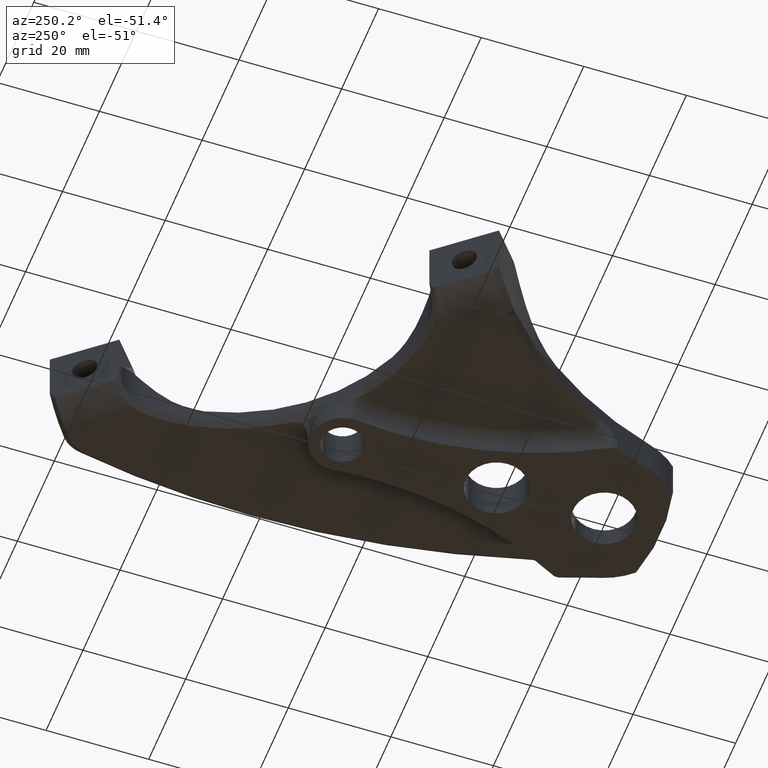
[diagram: clean part render]
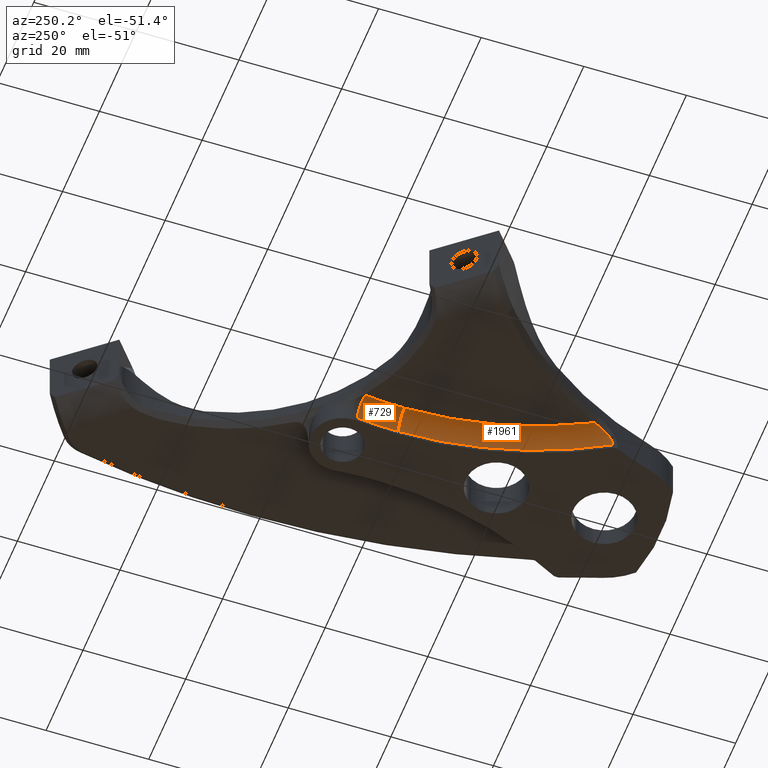
[diagram: same view with one multi-face feature highlighted, each face labeled with its STEP entity id]
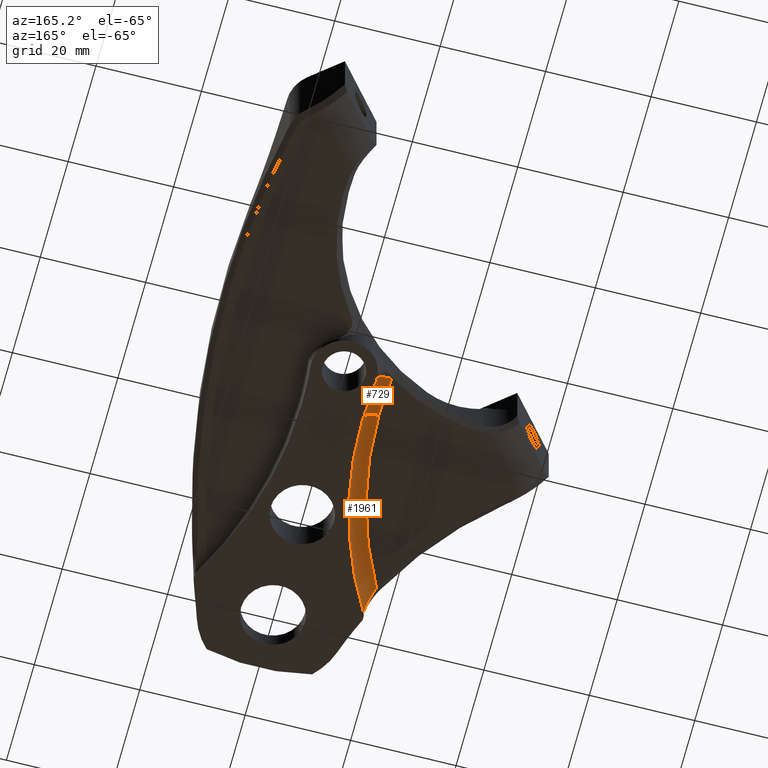
[diagram: same view with one multi-face feature highlighted, each face labeled with its STEP entity id]
A machine part, auxiliary view. The highlighted faces form ONE feature: a constant-radius fillet chain: 2 tangent blend faces with common blend radius 3.175 mm. The faces share edges in the B-rep.
A second angle (auxiliary view) of the same feature is appended — it is thin or edge-on in the first view.
Their STEP definitions:
[1] entity #1961 (Torus):
#19 = CARTESIAN_POINT ( 'NONE',  ( -17.32713006791666300, 7.893620290536436100, -0.01314927775519285900 ) ) ;
#86 = CARTESIAN_POINT ( 'NONE',  ( -16.95694036213411200, 6.824794619698474600, -0.2065549157166281800 ) ) ;
#103 = EDGE_LOOP ( 'NONE', ( #1093, #750, #1333, #431 ) ) ;
#106 = CARTESIAN_POINT ( 'NONE',  ( -16.11974643430036700, 4.172303941784086600, -2.943662587470298900 ) ) ;
#115 = CARTESIAN_POINT ( 'NONE',  ( -16.36010604480489100, 4.972070466250358800, -1.294650267627531800 ) ) ;
#140 = CARTESIAN_POINT ( 'NONE',  ( -16.99367375735066300, 6.933625636523463400, -0.1745115039723481000 ) ) ;
#150 = CARTESIAN_POINT ( 'NONE',  ( -16.34045124637314900, 4.907969160249481700, -1.363017720651017000 ) ) ;
#169 = CARTESIAN_POINT ( 'NONE',  ( -16.70124060004785700, 6.052374319384428600, -0.5102661665487634400 ) ) ;
#193 = CARTESIAN_POINT ( 'NONE',  ( -16.85820991962287600, 6.530202395463272000, -0.3036691712987485400 ) ) ;
#195 = DIRECTION ( 'NONE',  ( 0.0000000000000000000, 0.0000000000000000000, -1.000000000000000000 ) ) ;
#217 = CARTESIAN_POINT ( 'NONE',  ( -17.19000608713516000, 7.504121891761776900, -0.05624553702411239100 ) ) ;
#251 = CARTESIAN_POINT ( 'NONE',  ( -16.76661307435811200, 6.252934531237252200, -0.4144974211264321800 ) ) ;
#278 = CIRCLE ( 'NONE', #3270, 71.82499999999998900 ) ;
#304 = CARTESIAN_POINT ( 'NONE',  ( -80.76965408793313400, 42.17812499999997300, -3.175000000000011400 ) ) ;
#314 = EDGE_CURVE ( 'NONE', #1991, #2809, #3182, .T. ) ;
#322 = CARTESIAN_POINT ( 'NONE',  ( -16.31876129252150400, 4.837020267666368100, -1.442642962259876400 ) ) ;
#343 = AXIS2_PLACEMENT_3D ( 'NONE', #304, #948, #3149 ) ;
#395 = CARTESIAN_POINT ( 'NONE',  ( -8.944654087933143300, 42.17812499999997300, -5.637851296924623100E-015 ) ) ;
#409 = CARTESIAN_POINT ( 'NONE',  ( -16.11731790131428000, 4.163977296646005600, -3.175000000000011400 ) ) ;
#431 = ORIENTED_EDGE ( 'NONE', *, *, #3308, .F. ) ;
#437 = CARTESIAN_POINT ( 'NONE',  ( -16.66986745275626100, 5.955621695953017700, -0.5596465993611973200 ) ) ;
#449 = CARTESIAN_POINT ( 'NONE',  ( -16.20040453833640700, 4.444560588513141400, -2.027729583173014700 ) ) ;
#455 = CARTESIAN_POINT ( 'NONE',  ( -16.30144675083077000, 4.780100523326855600, -1.512144183324602300 ) ) ;
#460 = CIRCLE ( 'NONE', #343, 74.99999999999998600 ) ;
#497 = CARTESIAN_POINT ( 'NONE',  ( -17.18141459303705800, 7.479488085271863300, -0.05995588793603064100 ) ) ;
#577 = CARTESIAN_POINT ( 'NONE',  ( -17.40073488402177700, 8.100354830017652200, -1.238828037006797500E-014 ) ) ;
#582 = CARTESIAN_POINT ( 'NONE',  ( -80.76965408793313400, 42.17812499999997300, -3.175000000000011400 ) ) ;
#603 = DIRECTION ( 'NONE',  ( -0.0000000000000000000, -0.0000000000000000000, -1.000000000000000000 ) ) ;
#621 = CARTESIAN_POINT ( 'NONE',  ( -17.32217262157107400, 7.879664358654827600, -0.01417153711818459900 ) ) ;
#750 = ORIENTED_EDGE ( 'NONE', *, *, #2225, .F. ) ;
#881 = CARTESIAN_POINT ( 'NONE',  ( -17.30766687786305300, 7.838787150325359200, -0.01734626066290517000 ) ) ;
#948 = DIRECTION ( 'NONE',  ( 0.0000000000000000000, 0.0000000000000000000, 1.000000000000000000 ) ) ;
#981 = CARTESIAN_POINT ( 'NONE',  ( -16.13769842029330400, 4.233203992264798800, -2.598508583086736000 ) ) ;
#1002 = CARTESIAN_POINT ( 'NONE',  ( -16.35654840628307100, 4.960480194832665100, -1.306781909296766700 ) ) ;
#1030 = CARTESIAN_POINT ( 'NONE',  ( -16.11731609970823700, 4.163980360716779600, -3.059447185505082900 ) ) ;
#1083 = FACE_OUTER_BOUND ( 'NONE', #103, .T. ) ;
#1093 = ORIENTED_EDGE ( 'NONE', *, *, #3068, .F. ) ;
#1118 = AXIS2_PLACEMENT_3D ( 'NONE', #3455, #1811, #195 ) ;
#1167 = CARTESIAN_POINT ( 'NONE',  ( -16.94075507065248600, 6.776784162971083000, -0.2209860409216316500 ) ) ;
#1226 = CARTESIAN_POINT ( 'NONE',  ( -16.71498546529215900, 6.094629993559629500, -0.4895361822945641400 ) ) ;
#1257 = CARTESIAN_POINT ( 'NONE',  ( -16.52594636448922900, 5.504780980780533500, -0.8379983926594772900 ) ) ;
#1287 = VERTEX_POINT ( 'NONE', #395 ) ;
#1308 = AXIS2_PLACEMENT_3D ( 'NONE', #582, #2395, #1403 ) ;
#1333 = ORIENTED_EDGE ( 'NONE', *, *, #314, .T. ) ;
#1403 = DIRECTION ( 'NONE',  ( 1.000000000000000000, 0.0000000000000000000, 0.0000000000000000000 ) ) ;
#1411 = CARTESIAN_POINT ( 'NONE',  ( -16.47856553136505700, 5.354232912731440300, -0.9490256168687392100 ) ) ;
#1478 = CARTESIAN_POINT ( 'NONE',  ( -16.35006685743330800, 4.939346544713537000, -1.329229667997683400 ) ) ;
#1483 = CARTESIAN_POINT ( 'NONE',  ( -17.27155842883091500, 7.736674390761790800, -0.02678872524002827100 ) ) ;
#1521 = CARTESIAN_POINT ( 'NONE',  ( -16.64417114301171500, 5.875864976518362100, -0.6035952069853873800 ) ) ;
#1568 = CARTESIAN_POINT ( 'NONE',  ( -17.28783905288787500, 7.782802687426269000, -0.02216237635611892400 ) ) ;
#1656 = CARTESIAN_POINT ( 'NONE',  ( -17.19575721202404500, 7.520602825260930000, -0.05380475645699118300 ) ) ;
#1703 = CARTESIAN_POINT ( 'NONE',  ( -5.769654087933144400, 42.17812499999997300, -3.175000000000011400 ) ) ;
#1705 = CARTESIAN_POINT ( 'NONE',  ( -16.92266441108794300, 6.723013264970372700, -0.2376960485590954000 ) ) ;
#1733 = CARTESIAN_POINT ( 'NONE',  ( -16.56324196180416700, 5.622783573300695900, -0.7557246262562226100 ) ) ;
#1769 = CARTESIAN_POINT ( 'NONE',  ( -16.50586401373261600, 5.441091557556589500, -0.8838187934504417900 ) ) ;
#1808 = CARTESIAN_POINT ( 'NONE',  ( -16.80186215788822000, 6.360268024336146000, -0.3685418915728817500 ) ) ;
#1811 = DIRECTION ( 'NONE',  ( 0.0000000000000000000, -1.000000000000000000, 0.0000000000000000000 ) ) ;
#1831 = CARTESIAN_POINT ( 'NONE',  ( -17.12300310142765600, 7.311358323715415600, -0.08821555555352392200 ) ) ;
#1860 = CARTESIAN_POINT ( 'NONE',  ( -17.09160583142382400, 7.220236789679725900, -0.1067010159542611800 ) ) ;
#1886 = CARTESIAN_POINT ( 'NONE',  ( -17.32510460649977100, 7.887919518215155400, -0.01356160575935360500 ) ) ;
#1898 = CARTESIAN_POINT ( 'NONE',  ( -16.72421521659872200, 6.122975667361989100, -0.4758154928119704400 ) ) ;
#1961 = ADVANCED_FACE ( 'NONE', ( #1083 ), #2208, .F. ) ;
#1983 = CARTESIAN_POINT ( 'NONE',  ( -16.88725012249869900, 6.617401564362566500, -0.2722500839793524100 ) ) ;
#1986 = CARTESIAN_POINT ( 'NONE',  ( -16.16787915290376200, 4.335292017444325000, -2.267645142716340000 ) ) ;
#1991 = VERTEX_POINT ( 'NONE', #409 ) ;
#2022 = CARTESIAN_POINT ( 'NONE',  ( -16.51787221311146000, 5.479189104576533100, -0.8562716897378093200 ) ) ;
#2032 = CARTESIAN_POINT ( 'NONE',  ( -16.14441609675013800, 4.255940722335212800, -2.511657976512096500 ) ) ;
#2058 = CARTESIAN_POINT ( 'NONE',  ( -16.72941118087493400, 6.138915155897009900, -0.4682137749387356700 ) ) ;
#2071 = CARTESIAN_POINT ( 'NONE',  ( -16.15617814801807800, 4.295733456272746900, -2.375757519208713900 ) ) ;
#2081 = CARTESIAN_POINT ( 'NONE',  ( -17.19922038497645600, 7.530521025017903500, -0.05236492321796019900 ) ) ;
#2160 = CARTESIAN_POINT ( 'NONE',  ( -80.76965408793313400, 42.17812499999997300, 0.0000000000000000000 ) ) ;
#2178 = CARTESIAN_POINT ( 'NONE',  ( -16.26850223084082700, 4.671472578391036000, -1.652560676802903500 ) ) ;
#2208 = TOROIDAL_SURFACE ( 'NONE', #1308, 71.82499999999998900, 3.174999999999999800 ) ;
#2213 = CARTESIAN_POINT ( 'NONE',  ( -16.41368854377258300, 5.146078811307778400, -1.122904443918639100 ) ) ;
#2225 = EDGE_CURVE ( 'NONE', #1991, #2776, #460, .T. ) ;
#2227 = CARTESIAN_POINT ( 'NONE',  ( -17.35753778443635300, 7.979187153541284200, -0.007037015499046460200 ) ) ;
#2255 = CARTESIAN_POINT ( 'NONE',  ( -16.59435212209795600, 5.720608575209849900, -0.6933716787290567000 ) ) ;
#2293 = CARTESIAN_POINT ( 'NONE',  ( -16.95383206688309100, 6.815581452515102600, -0.2092888030385038900 ) ) ;
#2323 = CARTESIAN_POINT ( 'NONE',  ( -17.16161448742979400, 7.422623383936108400, -0.06894941477622509900 ) ) ;
#2395 = DIRECTION ( 'NONE',  ( 0.0000000000000000000, 0.0000000000000000000, 1.000000000000000000 ) ) ;
#2409 = CARTESIAN_POINT ( 'NONE',  ( -16.18897310115297800, 4.406208666747137800, -2.107383227554251000 ) ) ;
#2421 = DIRECTION ( 'NONE',  ( 1.000000000000000000, 0.0000000000000000000, 0.0000000000000000000 ) ) ;
#2439 = CARTESIAN_POINT ( 'NONE',  ( -16.12710121033910600, 4.197290284210466500, -2.770681692764132500 ) ) ;
#2523 = CARTESIAN_POINT ( 'NONE',  ( -16.53048375993357400, 5.519147859121201100, -0.8278810615731940800 ) ) ;
#2574 = CARTESIAN_POINT ( 'NONE',  ( -16.21317152984607200, 4.487241194847436900, -1.948983527557215600 ) ) ;
#2615 = CARTESIAN_POINT ( 'NONE',  ( -17.03105034642042500, 7.043700840468210000, -0.1457399662885305600 ) ) ;
#2644 = CIRCLE ( 'NONE', #1118, 3.174999999999999800 ) ;
#2723 = CARTESIAN_POINT ( 'NONE',  ( -16.38738179752565200, 5.060867190817735000, -1.202865167734739300 ) ) ;
#2753 = CARTESIAN_POINT ( 'NONE',  ( -16.94859032765216600, 6.800035076900514700, -0.2139505982984958900 ) ) ;
#2775 = CARTESIAN_POINT ( 'NONE',  ( -16.22197983591139800, 4.516654831750616800, -1.896709424539664300 ) ) ;
#2776 = VERTEX_POINT ( 'NONE', #1703 ) ;
#2791 = CARTESIAN_POINT ( 'NONE',  ( -17.45818607800096700, 8.259271195259827900, 0.0000000000000000000 ) ) ;
#2809 = VERTEX_POINT ( 'NONE', #3448 ) ;
#2819 = CARTESIAN_POINT ( 'NONE',  ( -17.31778956619350000, 7.867320175709307000, -0.01509872490142451200 ) ) ;
#2981 = CARTESIAN_POINT ( 'NONE',  ( -16.22684493103516000, 4.532882700604051100, -1.868962597018485800 ) ) ;
#2994 = CARTESIAN_POINT ( 'NONE',  ( -16.11731790131428000, 4.163977296646005600, -3.175000000000011400 ) ) ;
#3068 = EDGE_CURVE ( 'NONE', #2776, #1287, #2644, .T. ) ;
#3087 = CARTESIAN_POINT ( 'NONE',  ( -16.14200244699296900, 4.247773283330167800, -2.541394675328994400 ) ) ;
#3149 = DIRECTION ( 'NONE',  ( 1.000000000000000000, 0.0000000000000000000, 0.0000000000000000000 ) ) ;
#3182 = B_SPLINE_CURVE_WITH_KNOTS ( 'NONE', 3,
 ( #2994, #1030, #106, #2439, #3298, #981, #3087, #2032, #2071, #1986, #2409, #449, #2574, #2775, #2981, #3399, #2178, #455, #322, #150, #1478, #1002, #115, #2723, #2213, #3452, #1411, #1769, #2022, #1257, #2523, #1733, #2255, #1521, #437, #169, #1226, #1898, #2058, #251, #1808, #193, #1983, #1705, #1167, #2753, #2293, #86, #140, #2615, #1860, #1831, #2323, #497, #217, #1656, #2081, #3486, #3183, #1483, #1568, #881, #2819, #621, #1886, #19, #2227, #577, #2791 ),
 .UNSPECIFIED., .F., .F.,
 ( 4, 2, 1, 2, 2, 2, 1, 2, 2, 2, 1, 1, 2, 2, 2, 1, 1, 2, 2, 2, 1, 1, 2, 2, 2, 1, 1, 1, 2, 2, 2, 1, 1, 1, 2, 2, 2, 1, 1, 1, 2, 2, 4 ),
 ( 0.0000000000000000000, 0.06249999999999883400, 0.09374999999999814000, 0.1093749999999977900, 0.1249999999999974500, 0.1874999999999967200, 0.2187499999999964800, 0.2343749999999964500, 0.2499999999999964500, 0.3124999999999962300, 0.3437499999999961100, 0.3593749999999957800, 0.3671874999999956700, 0.3749999999999955000, 0.4374999999999968400, 0.4687499999999972200, 0.4843749999999976100, 0.4921874999999978400, 0.4999999999999980000, 0.5624999999999983300, 0.5937499999999988900, 0.6093749999999994400, 0.6171874999999994400, 0.6249999999999995600, 0.6874999999999990000, 0.7187499999999990000, 0.7343749999999993300, 0.7421874999999992200, 0.7460937499999992200, 0.7499999999999991100, 0.8124999999999975600, 0.8437499999999967800, 0.8593749999999962300, 0.8671874999999960000, 0.8710937499999957800, 0.8749999999999954500, 0.9062499999999916700, 0.9218749999999902300, 0.9296874999999899000, 0.9335937499999894500, 0.9355468749999890100, 0.9374999999999884500, 1.000000000000000000 ),
 .UNSPECIFIED. ) ;
#3183 = CARTESIAN_POINT ( 'NONE',  ( -17.23994313695282100, 7.646904250692409200, -0.03657311425806365800 ) ) ;
#3270 = AXIS2_PLACEMENT_3D ( 'NONE', #2160, #603, #2421 ) ;
#3298 = CARTESIAN_POINT ( 'NONE',  ( -16.13170476587198400, 4.212907528897798000, -2.684365556919531500 ) ) ;
#3308 = EDGE_CURVE ( 'NONE', #1287, #2809, #278, .T. ) ;
#3399 = CARTESIAN_POINT ( 'NONE',  ( -16.24878862725865100, 4.606005580287708200, -1.748054638633427200 ) ) ;
#3448 = CARTESIAN_POINT ( 'NONE',  ( -17.45818607800096700, 8.259271195259827900, 0.0000000000000000000 ) ) ;
#3452 = CARTESIAN_POINT ( 'NONE',  ( -16.45639908834791500, 5.283284295242359500, -1.006410012025754000 ) ) ;
#3455 = CARTESIAN_POINT ( 'NONE',  ( -8.944654087933143300, 42.17812499999997300, -3.175000000000011400 ) ) ;
#3486 = CARTESIAN_POINT ( 'NONE',  ( -17.22012852087633700, 7.590373523932386000, -0.04380255069782544600 ) ) ;
[2] entity #729 (Torus):
#18 = ORIENTED_EDGE ( 'NONE', *, *, #1620, .F. ) ;
#132 = FACE_OUTER_BOUND ( 'NONE', #2096, .T. ) ;
#195 = DIRECTION ( 'NONE',  ( 0.0000000000000000000, 0.0000000000000000000, -1.000000000000000000 ) ) ;
#254 = CARTESIAN_POINT ( 'NONE',  ( -9.369279874200248800, 49.97666249999998200, -3.174999999999999800 ) ) ;
#268 = DIRECTION ( 'NONE',  ( -0.1085769230769230300, 0.9940880503130232700, 0.0000000000000000000 ) ) ;
#299 = CARTESIAN_POINT ( 'NONE',  ( -80.76965408793313400, 42.17812499999997300, 0.0000000000000000000 ) ) ;
#395 = CARTESIAN_POINT ( 'NONE',  ( -8.944654087933143300, 42.17812499999997300, -5.637851296924623100E-015 ) ) ;
#421 = ORIENTED_EDGE ( 'NONE', *, *, #1442, .T. ) ;
#492 = AXIS2_PLACEMENT_3D ( 'NONE', #1425, #2938, #2675 ) ;
#516 = ORIENTED_EDGE ( 'NONE', *, *, #3068, .T. ) ;
#556 = VERTEX_POINT ( 'NONE', #1119 ) ;
#590 = DIRECTION ( 'NONE',  ( 1.000000000000000000, 8.887967130657363000E-015, 0.0000000000000000000 ) ) ;
#692 = AXIS2_PLACEMENT_3D ( 'NONE', #1300, #2432, #3261 ) ;
#729 = ADVANCED_FACE ( 'NONE', ( #132 ), #2057, .F. ) ;
#1118 = AXIS2_PLACEMENT_3D ( 'NONE', #3455, #1811, #195 ) ;
#1119 = CARTESIAN_POINT ( 'NONE',  ( -6.213050314456397800, 50.32139423076921500, -3.175000000000011400 ) ) ;
#1250 = CARTESIAN_POINT ( 'NONE',  ( -9.369279874200248800, 49.97666249999998200, 0.0000000000000000000 ) ) ;
#1287 = VERTEX_POINT ( 'NONE', #395 ) ;
#1300 = CARTESIAN_POINT ( 'NONE',  ( -80.76965408793313400, 42.17812499999997300, -3.175000000000011400 ) ) ;
#1425 = CARTESIAN_POINT ( 'NONE',  ( -80.76965408793313400, 42.17812499999997300, -3.175000000000011400 ) ) ;
#1442 = EDGE_CURVE ( 'NONE', #2654, #556, #2416, .T. ) ;
#1613 = AXIS2_PLACEMENT_3D ( 'NONE', #254, #268, #3532 ) ;
#1620 = EDGE_CURVE ( 'NONE', #2776, #556, #1978, .T. ) ;
#1703 = CARTESIAN_POINT ( 'NONE',  ( -5.769654087933144400, 42.17812499999997300, -3.175000000000011400 ) ) ;
#1811 = DIRECTION ( 'NONE',  ( 0.0000000000000000000, -1.000000000000000000, 0.0000000000000000000 ) ) ;
#1978 = CIRCLE ( 'NONE', #492, 74.99999999999998600 ) ;
#2057 = TOROIDAL_SURFACE ( 'NONE', #692, 71.82499999999998900, 3.174999999999999800 ) ;
#2096 = EDGE_LOOP ( 'NONE', ( #18, #516, #3202, #421 ) ) ;
#2149 = DIRECTION ( 'NONE',  ( -0.0000000000000000000, -0.0000000000000000000, -1.000000000000000000 ) ) ;
#2416 = CIRCLE ( 'NONE', #1613, 3.174999999999999400 ) ;
#2432 = DIRECTION ( 'NONE',  ( 0.0000000000000000000, 0.0000000000000000000, 1.000000000000000000 ) ) ;
#2644 = CIRCLE ( 'NONE', #1118, 3.174999999999999800 ) ;
#2654 = VERTEX_POINT ( 'NONE', #1250 ) ;
#2675 = DIRECTION ( 'NONE',  ( 1.000000000000000000, 0.0000000000000000000, 0.0000000000000000000 ) ) ;
#2776 = VERTEX_POINT ( 'NONE', #1703 ) ;
#2873 = AXIS2_PLACEMENT_3D ( 'NONE', #299, #2149, #590 ) ;
#2938 = DIRECTION ( 'NONE',  ( 0.0000000000000000000, 0.0000000000000000000, 1.000000000000000000 ) ) ;
#3051 = CIRCLE ( 'NONE', #2873, 71.82499999999998900 ) ;
#3068 = EDGE_CURVE ( 'NONE', #2776, #1287, #2644, .T. ) ;
#3202 = ORIENTED_EDGE ( 'NONE', *, *, #3260, .F. ) ;
#3260 = EDGE_CURVE ( 'NONE', #2654, #1287, #3051, .T. ) ;
#3261 = DIRECTION ( 'NONE',  ( 1.000000000000000000, 0.0000000000000000000, 0.0000000000000000000 ) ) ;
#3455 = CARTESIAN_POINT ( 'NONE',  ( -8.944654087933143300, 42.17812499999997300, -3.175000000000011400 ) ) ;
#3532 = DIRECTION ( 'NONE',  ( -0.9940880503130232700, -0.1085769230769231000, 0.0000000000000000000 ) ) ;